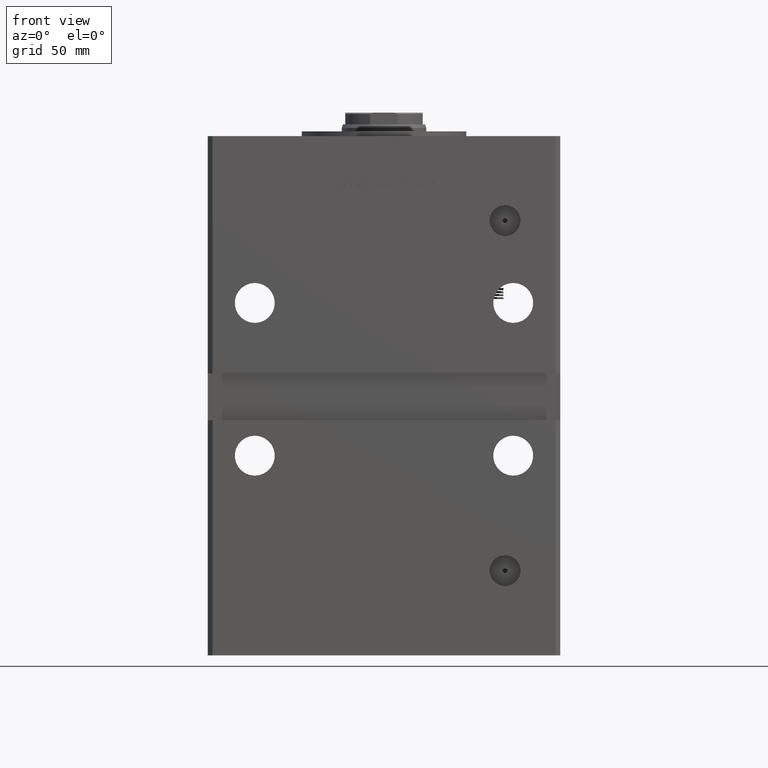
[diagram: clean part render]
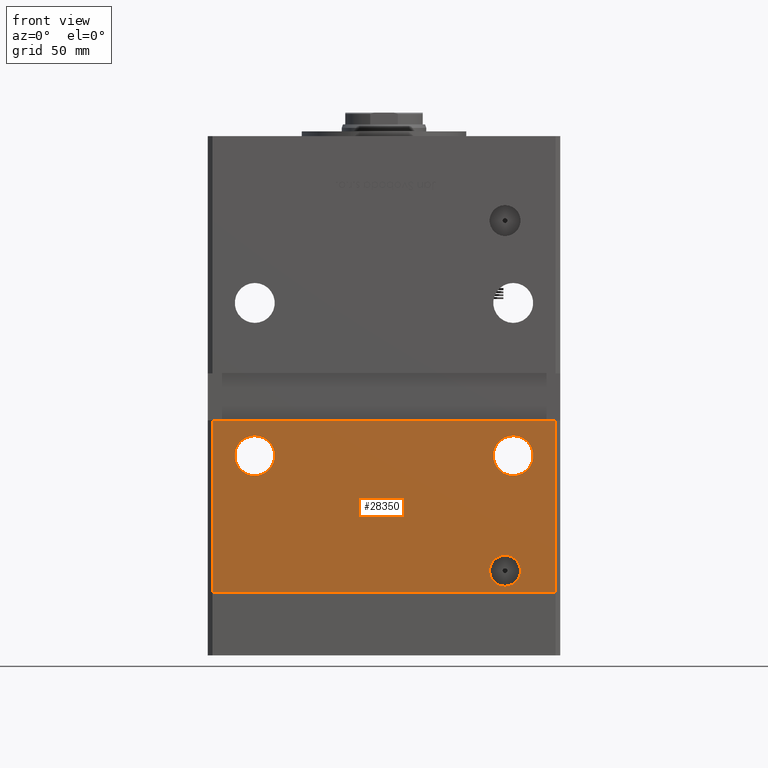
[diagram: same view with one face highlighted and labeled with its STEP entity id]
A machine part, front view. The second image highlights one B-rep face of the part: STEP entity #28350.
In plain terms, the highlighted planar face has unit normal (0, 1, 0).
Its self-contained STEP definition (entity closure, byte-faithful):
#63 = DIRECTION ( 'NONE',  ( 0.000000000000000000, 1.000000000000000000, 0.000000000000000000 ) ) ;
#333 = VERTEX_POINT ( 'NONE', #38247 ) ;
#844 = ORIENTED_EDGE ( 'NONE', *, *, #9277, .F. ) ;
#1250 = DIRECTION ( 'NONE',  ( 0.000000000000000000, 1.000000000000000000, 0.000000000000000000 ) ) ;
#1771 = EDGE_CURVE ( 'NONE', #333, #39912, #31956, .T. ) ;
#1852 = EDGE_LOOP ( 'NONE', ( #32469, #16957 ) ) ;
#2391 = DIRECTION ( 'NONE',  ( 1.000000000000000000, 0.000000000000000000, 0.000000000000000000 ) ) ;
#3093 = CARTESIAN_POINT ( 'NONE',  ( 72.99999999999998579, -62.50000000000000000, 167.0000000000000000 ) ) ;
#3572 = FACE_OUTER_BOUND ( 'NONE', #43376, .T. ) ;
#4311 = EDGE_CURVE ( 'NONE', #38536, #38323, #52311, .T. ) ;
#6643 = EDGE_LOOP ( 'NONE', ( #28790, #844 ) ) ;
#6794 = EDGE_CURVE ( 'NONE', #38536, #8266, #27799, .T. ) ;
#6827 = VECTOR ( 'NONE', #2391, 1000.000000000000000 ) ;
#6896 = DIRECTION ( 'NONE',  ( 1.000000000000000000, 0.000000000000000000, 0.000000000000000000 ) ) ;
#8068 = FACE_BOUND ( 'NONE', #51876, .T. ) ;
#8266 = VERTEX_POINT ( 'NONE', #42655 ) ;
#8601 = DIRECTION ( 'NONE',  ( -0.000000000000000000, -0.000000000000000000, -1.000000000000000000 ) ) ;
#8737 = CARTESIAN_POINT ( 'NONE',  ( -72.99999999999998579, -62.50000000000000000, 73.00000000000001421 ) ) ;
#9277 = EDGE_CURVE ( 'NONE', #39912, #333, #18212, .T. ) ;
#9929 = CARTESIAN_POINT ( 'NONE',  ( 55.00000000000000000, -62.50000000000000000, 58.00000000000001421 ) ) ;
#10830 = LINE ( 'NONE', #28062, #6827 ) ;
#12302 = VERTEX_POINT ( 'NONE', #51435 ) ;
#13122 = CARTESIAN_POINT ( 'NONE',  ( -72.99999999999998579, -62.50000000000000000, 167.0000000000000000 ) ) ;
#13625 = DIRECTION ( 'NONE',  ( 0.000000000000000000, 0.000000000000000000, 1.000000000000000000 ) ) ;
#13969 = VECTOR ( 'NONE', #49654, 1000.000000000000000 ) ;
#16392 = DIRECTION ( 'NONE',  ( 0.000000000000000000, -1.000000000000000000, 0.000000000000000000 ) ) ;
#16559 = DIRECTION ( 'NONE',  ( 0.000000000000000000, 1.000000000000000000, 0.000000000000000000 ) ) ;
#16957 = ORIENTED_EDGE ( 'NONE', *, *, #49614, .T. ) ;
#17689 = CIRCLE ( 'NONE', #49194, 8.500000000000000000 ) ;
#18212 = CIRCLE ( 'NONE', #20800, 6.579999999999994742 ) ;
#19268 = VERTEX_POINT ( 'NONE', #40738 ) ;
#19335 = DIRECTION ( 'NONE',  ( 0.000000000000000000, -1.000000000000000000, 0.000000000000000000 ) ) ;
#20126 = CARTESIAN_POINT ( 'NONE',  ( 51.49999999999998579, -62.50000000000000000, 15.57999999999999474 ) ) ;
#20800 = AXIS2_PLACEMENT_3D ( 'NONE', #43427, #16392, #51626 ) ;
#21670 = EDGE_CURVE ( 'NONE', #8266, #36563, #36703, .T. ) ;
#22623 = CARTESIAN_POINT ( 'NONE',  ( -72.99999999999998579, -62.50000000000000000, 0.000000000000000000 ) ) ;
#23559 = CARTESIAN_POINT ( 'NONE',  ( -74.99999999999998579, -62.50000000000000000, 73.00000000000001421 ) ) ;
#23900 = CARTESIAN_POINT ( 'NONE',  ( -55.00000000000000000, -62.50000000000000000, 66.50000000000001421 ) ) ;
#24333 = EDGE_CURVE ( 'NONE', #27213, #19268, #17689, .T. ) ;
#24334 = ORIENTED_EDGE ( 'NONE', *, *, #21670, .F. ) ;
#24919 = CIRCLE ( 'NONE', #53780, 8.500000000000000000 ) ;
#25020 = FACE_BOUND ( 'NONE', #1852, .T. ) ;
#25353 = ORIENTED_EDGE ( 'NONE', *, *, #6794, .F. ) ;
#26281 = CARTESIAN_POINT ( 'NONE',  ( -55.00000000000000000, -62.50000000000000000, 58.00000000000001421 ) ) ;
#26383 = ORIENTED_EDGE ( 'NONE', *, *, #27625, .T. ) ;
#26823 = CARTESIAN_POINT ( 'NONE',  ( 55.00000000000000000, -62.50000000000000000, 66.50000000000001421 ) ) ;
#27213 = VERTEX_POINT ( 'NONE', #23900 ) ;
#27625 = EDGE_CURVE ( 'NONE', #38323, #36563, #10830, .T. ) ;
#27799 = LINE ( 'NONE', #23559, #35214 ) ;
#28062 = CARTESIAN_POINT ( 'NONE',  ( -72.99999999999998579, -62.50000000000000000, 0.000000000000000000 ) ) ;
#28350 = ADVANCED_FACE ( 'NONE', ( #25020, #8068, #50957, #3572 ), #37997, .F. ) ;
#28790 = ORIENTED_EDGE ( 'NONE', *, *, #1771, .F. ) ;
#29277 = VERTEX_POINT ( 'NONE', #26823 ) ;
#29678 = ORIENTED_EDGE ( 'NONE', *, *, #32489, .T. ) ;
#31108 = ORIENTED_EDGE ( 'NONE', *, *, #4311, .T. ) ;
#31448 = DIRECTION ( 'NONE',  ( 0.000000000000000000, 0.000000000000000000, 1.000000000000000000 ) ) ;
#31934 = CIRCLE ( 'NONE', #39133, 8.500000000000000000 ) ;
#31956 = CIRCLE ( 'NONE', #36468, 6.579999999999994742 ) ;
#32126 = DIRECTION ( 'NONE',  ( 0.000000000000000000, 0.000000000000000000, 1.000000000000000000 ) ) ;
#32469 = ORIENTED_EDGE ( 'NONE', *, *, #24333, .T. ) ;
#32489 = EDGE_CURVE ( 'NONE', #12302, #29277, #50283, .T. ) ;
#33177 = AXIS2_PLACEMENT_3D ( 'NONE', #9929, #44337, #13625 ) ;
#33765 = DIRECTION ( 'NONE',  ( 0.000000000000000000, -0.000000000000000000, 1.000000000000000000 ) ) ;
#34207 = CARTESIAN_POINT ( 'NONE',  ( 72.99999999999998579, -62.50000000000000000, 0.000000000000000000 ) ) ;
#34969 = ORIENTED_EDGE ( 'NONE', *, *, #44879, .T. ) ;
#35214 = VECTOR ( 'NONE', #6896, 1000.000000000000000 ) ;
#36468 = AXIS2_PLACEMENT_3D ( 'NONE', #41044, #19335, #53731 ) ;
#36563 = VERTEX_POINT ( 'NONE', #34207 ) ;
#36703 = LINE ( 'NONE', #3093, #13969 ) ;
#37997 = PLANE ( 'NONE',  #54625 ) ;
#38247 = CARTESIAN_POINT ( 'NONE',  ( 51.49999999999998579, -62.50000000000000000, 2.420000000000004814 ) ) ;
#38323 = VERTEX_POINT ( 'NONE', #22623 ) ;
#38536 = VERTEX_POINT ( 'NONE', #8737 ) ;
#38987 = DIRECTION ( 'NONE',  ( 0.000000000000000000, 0.000000000000000000, 1.000000000000000000 ) ) ;
#39133 = AXIS2_PLACEMENT_3D ( 'NONE', #44506, #40297, #32126 ) ;
#39894 = CARTESIAN_POINT ( 'NONE',  ( -55.00000000000000000, -62.50000000000000000, 58.00000000000001421 ) ) ;
#39912 = VERTEX_POINT ( 'NONE', #20126 ) ;
#40297 = DIRECTION ( 'NONE',  ( 0.000000000000000000, 1.000000000000000000, 0.000000000000000000 ) ) ;
#40738 = CARTESIAN_POINT ( 'NONE',  ( -55.00000000000000000, -62.50000000000000000, 49.50000000000001421 ) ) ;
#41044 = CARTESIAN_POINT ( 'NONE',  ( 51.49999999999998579, -62.50000000000000000, 9.000000000000000000 ) ) ;
#42655 = CARTESIAN_POINT ( 'NONE',  ( 72.99999999999998579, -62.50000000000000000, 73.00000000000001421 ) ) ;
#43376 = EDGE_LOOP ( 'NONE', ( #24334, #25353, #31108, #26383 ) ) ;
#43427 = CARTESIAN_POINT ( 'NONE',  ( 51.49999999999998579, -62.50000000000000000, 9.000000000000000000 ) ) ;
#44337 = DIRECTION ( 'NONE',  ( 0.000000000000000000, 1.000000000000000000, 0.000000000000000000 ) ) ;
#44506 = CARTESIAN_POINT ( 'NONE',  ( 55.00000000000000000, -62.50000000000000000, 58.00000000000001421 ) ) ;
#44879 = EDGE_CURVE ( 'NONE', #29277, #12302, #31934, .T. ) ;
#49194 = AXIS2_PLACEMENT_3D ( 'NONE', #39894, #1250, #31448 ) ;
#49614 = EDGE_CURVE ( 'NONE', #19268, #27213, #24919, .T. ) ;
#49654 = DIRECTION ( 'NONE',  ( -0.000000000000000000, -0.000000000000000000, -1.000000000000000000 ) ) ;
#50283 = CIRCLE ( 'NONE', #33177, 8.500000000000000000 ) ;
#50957 = FACE_BOUND ( 'NONE', #6643, .T. ) ;
#51435 = CARTESIAN_POINT ( 'NONE',  ( 55.00000000000000000, -62.50000000000000000, 49.50000000000001421 ) ) ;
#51626 = DIRECTION ( 'NONE',  ( 0.000000000000000000, 0.000000000000000000, -1.000000000000000000 ) ) ;
#51876 = EDGE_LOOP ( 'NONE', ( #34969, #29678 ) ) ;
#51969 = VECTOR ( 'NONE', #8601, 1000.000000000000000 ) ;
#52311 = LINE ( 'NONE', #13122, #51969 ) ;
#53731 = DIRECTION ( 'NONE',  ( 0.000000000000000000, 0.000000000000000000, -1.000000000000000000 ) ) ;
#53780 = AXIS2_PLACEMENT_3D ( 'NONE', #26281, #63, #38987 ) ;
#54625 = AXIS2_PLACEMENT_3D ( 'NONE', #55175, #16559, #33765 ) ;
#55175 = CARTESIAN_POINT ( 'NONE',  ( -72.99999999999998579, -62.50000000000000000, 167.0000000000000000 ) ) ;